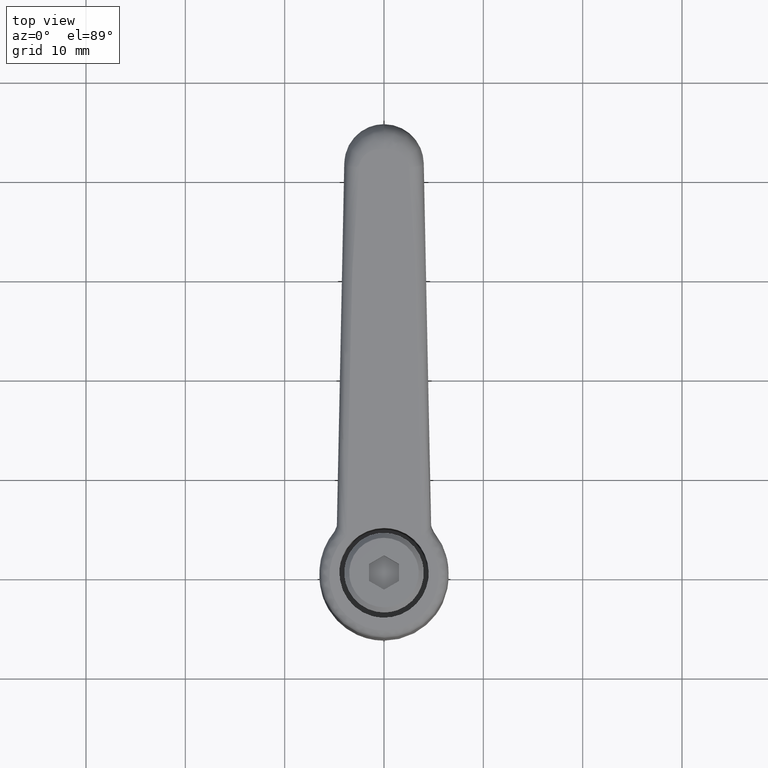
[diagram: clean part render]
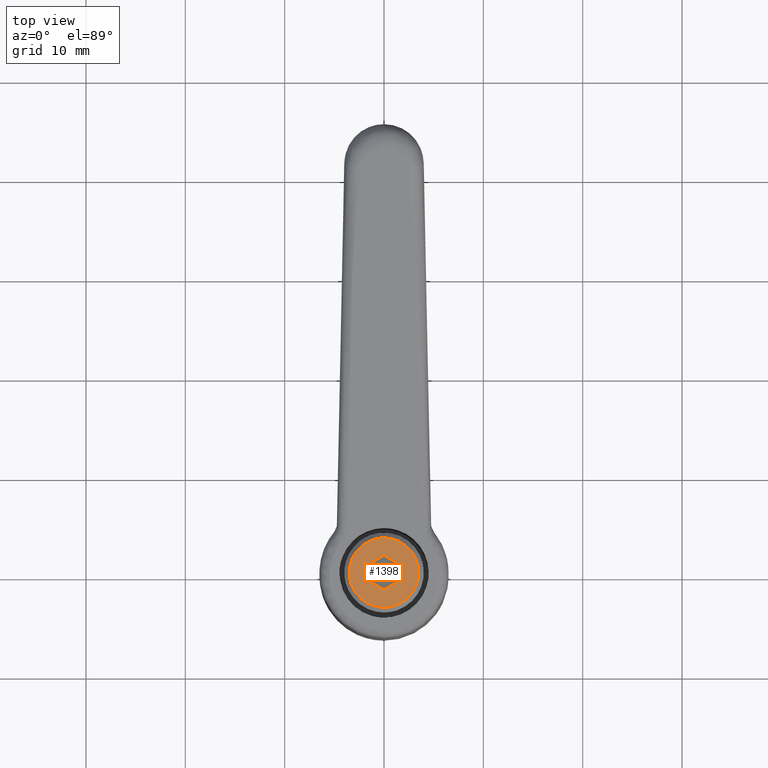
[diagram: same view with one face highlighted and labeled with its STEP entity id]
A machine part, top view. The second image highlights one B-rep face of the part: STEP entity #1398.
In plain terms, the highlighted face is a freeform B-spline surface patch.
Its self-contained STEP definition (entity closure, byte-faithful):
#1063=CARTESIAN_POINT('',(-0.413119821399317,3.475533342273494,24.499999999987359));
#1064=VERTEX_POINT('',#1063);
#1070=CARTESIAN_POINT('',(3.499999999999901,0.0,24.500000000000000));
#1071=VERTEX_POINT('',#1070);
#1072=CARTESIAN_POINT('',(-0.413119821399317,3.475533342273495,24.499999999987363));
#1073=CARTESIAN_POINT('',(-0.207284418881910,3.499999999999901,24.499999999999996));
#1074=CARTESIAN_POINT('',(0.0,3.499999999999901,24.500000000000000));
#1075=CARTESIAN_POINT('',(3.499999999999901,3.499999999999901,24.499999999999993));
#1076=CARTESIAN_POINT('',(3.499999999999901,0.0,24.500000000000000));
#1084=(BOUNDED_CURVE()B_SPLINE_CURVE(2,(#1072,#1073,#1074,#1075,#1076),.UNSPECIFIED.,.F.,.U.)B_SPLINE_CURVE_WITH_KNOTS((3,2,3),(0.229562473505998,0.250000000000000,0.500000000000000),.UNSPECIFIED.)CURVE()GEOMETRIC_REPRESENTATION_ITEM()RATIONAL_B_SPLINE_CURVE((0.956026754168980,0.976055948322347,1.0,0.707106781186547,1.0))REPRESENTATION_ITEM(''));
#1085=EDGE_CURVE('',#1064,#1071,#1084,.T.);
#1087=CARTESIAN_POINT('',(0.213669888571159,-3.493471794490406,24.499999999973902));
#1088=VERTEX_POINT('',#1087);
#1089=CARTESIAN_POINT('',(3.499999999999901,0.0,24.500000000000000));
#1090=CARTESIAN_POINT('',(3.499999999999900,-3.292471233796733,24.499999999999993));
#1091=CARTESIAN_POINT('',(0.213669888571159,-3.493471794490406,24.499999999973902));
#1099=(BOUNDED_CURVE()B_SPLINE_CURVE(2,(#1089,#1090,#1091),.UNSPECIFIED.,.F.,.U.)B_SPLINE_CURVE_WITH_KNOTS((3,3),(0.500000000000000,0.739332962222452),.UNSPECIFIED.)CURVE()GEOMETRIC_REPRESENTATION_ITEM()RATIONAL_B_SPLINE_CURVE((1.0,0.719603993306031,0.976072041631374))REPRESENTATION_ITEM(''));
#1100=EDGE_CURVE('',#1071,#1088,#1099,.T.);
#1133=CARTESIAN_POINT('',(-3.499999999999901,0.0,24.500000000000000));
#1134=VERTEX_POINT('',#1133);
#1135=CARTESIAN_POINT('',(0.213669888571159,-3.493471794490407,24.499999999973895));
#1136=CARTESIAN_POINT('',(0.106934671743184,-3.499999999999900,24.500000000000000));
#1137=CARTESIAN_POINT('',(0.0,-3.499999999999901,24.500000000000000));
#1138=CARTESIAN_POINT('',(-3.499999999999901,-3.499999999999901,24.499999999999993));
#1139=CARTESIAN_POINT('',(-3.499999999999901,0.0,24.500000000000000));
#1147=(BOUNDED_CURVE()B_SPLINE_CURVE(2,(#1135,#1136,#1137,#1138,#1139),.UNSPECIFIED.,.F.,.U.)B_SPLINE_CURVE_WITH_KNOTS((3,2,3),(0.739332962222452,0.750000000000000,1.0),.UNSPECIFIED.)CURVE()GEOMETRIC_REPRESENTATION_ITEM()RATIONAL_B_SPLINE_CURVE((0.976072041631374,0.987502787880517,1.0,0.707106781186547,1.0))REPRESENTATION_ITEM(''));
#1148=EDGE_CURVE('',#1088,#1134,#1147,.T.);
#1150=CARTESIAN_POINT('',(-3.499999999999901,0.0,24.500000000000000));
#1151=CARTESIAN_POINT('',(-3.499999999999901,3.108610840651028,24.499999999999993));
#1152=CARTESIAN_POINT('',(-0.413119821399317,3.475533342273495,24.499999999987359));
#1160=(BOUNDED_CURVE()B_SPLINE_CURVE(2,(#1150,#1151,#1152),.UNSPECIFIED.,.F.,.U.)B_SPLINE_CURVE_WITH_KNOTS((3,3),(0.0,0.229562473505999),.UNSPECIFIED.)CURVE()GEOMETRIC_REPRESENTATION_ITEM()RATIONAL_B_SPLINE_CURVE((1.0,0.731050832864201,0.956026754168980))REPRESENTATION_ITEM(''));
#1161=EDGE_CURVE('',#1134,#1064,#1160,.T.);
#1222=CARTESIAN_POINT('',(-1.732055999999900,0.0,24.500000000000000));
#1223=VERTEX_POINT('',#1222);
#1224=CARTESIAN_POINT('',(-0.866020000000000,1.500000000000000,24.500000000000000));
#1225=VERTEX_POINT('',#1224);
#1226=CARTESIAN_POINT('',(-1.732055999999900,0.0,24.500000000000000));
#1227=CARTESIAN_POINT('',(-0.866020000000000,1.500000000000000,24.500000000000000));
#1228=QUASI_UNIFORM_CURVE('',1,(#1226,#1227),.UNSPECIFIED.,.F.,.U.);
#1229=EDGE_CURVE('',#1223,#1225,#1228,.T.);
#1250=CARTESIAN_POINT('',(-0.866027999999900,-1.499999999999914,24.500000000000000));
#1251=VERTEX_POINT('',#1250);
#1252=CARTESIAN_POINT('',(-0.866027999999900,-1.499999999999914,24.500000000000000));
#1253=CARTESIAN_POINT('',(-1.732055999999900,0.0,24.500000000000000));
#1254=QUASI_UNIFORM_CURVE('',1,(#1252,#1253),.UNSPECIFIED.,.F.,.U.);
#1255=EDGE_CURVE('',#1251,#1223,#1254,.T.);
#1272=CARTESIAN_POINT('',(0.866028000000000,-1.499999999999914,24.500000000000000));
#1273=VERTEX_POINT('',#1272);
#1274=CARTESIAN_POINT('',(0.866028000000000,-1.499999999999914,24.500000000000000));
#1275=CARTESIAN_POINT('',(-0.866027999999900,-1.499999999999914,24.500000000000000));
#1276=QUASI_UNIFORM_CURVE('',1,(#1274,#1275),.UNSPECIFIED.,.F.,.U.);
#1277=EDGE_CURVE('',#1273,#1251,#1276,.T.);
#1294=CARTESIAN_POINT('',(1.732048000000000,0.0,24.500000000000000));
#1295=VERTEX_POINT('',#1294);
#1296=CARTESIAN_POINT('',(1.732048000000000,0.0,24.500000000000000));
#1297=CARTESIAN_POINT('',(0.866028000000000,-1.499999999999914,24.500000000000000));
#1298=QUASI_UNIFORM_CURVE('',1,(#1296,#1297),.UNSPECIFIED.,.F.,.U.);
#1299=EDGE_CURVE('',#1295,#1273,#1298,.T.);
#1316=CARTESIAN_POINT('',(0.866020000000000,1.500000000000000,24.500000000000000));
#1317=VERTEX_POINT('',#1316);
#1318=CARTESIAN_POINT('',(0.866020000000000,1.500000000000000,24.500000000000000));
#1319=CARTESIAN_POINT('',(1.732048000000000,0.0,24.500000000000000));
#1320=QUASI_UNIFORM_CURVE('',1,(#1318,#1319),.UNSPECIFIED.,.F.,.U.);
#1321=EDGE_CURVE('',#1317,#1295,#1320,.T.);
#1338=CARTESIAN_POINT('',(-0.866020000000000,1.500000000000000,24.500000000000000));
#1339=CARTESIAN_POINT('',(0.866020000000000,1.500000000000000,24.500000000000000));
#1340=QUASI_UNIFORM_CURVE('',1,(#1338,#1339),.UNSPECIFIED.,.F.,.U.);
#1341=EDGE_CURVE('',#1225,#1317,#1340,.T.);
#1379=CARTESIAN_POINT('',(-3.849649986432532,-3.849564799543457,24.500000000000000));
#1380=CARTESIAN_POINT('',(3.849650174187163,-3.849564799543457,24.500000000000000));
#1381=CARTESIAN_POINT('',(-3.849649986432532,3.849586328741148,24.500000000000000));
#1382=CARTESIAN_POINT('',(3.849650174187163,3.849586328741148,24.500000000000000));
#1383=B_SPLINE_SURFACE_WITH_KNOTS('',1,1,((#1379,#1381),(#1380,#1382)),.UNSPECIFIED.,.F.,.F.,.U.,(2,2),(2,2),(0.0,7.699300160619695),(0.0,7.699151128284605),.UNSPECIFIED.);
#1384=ORIENTED_EDGE('',*,*,#1148,.F.);
#1385=ORIENTED_EDGE('',*,*,#1100,.F.);
#1386=ORIENTED_EDGE('',*,*,#1085,.F.);
#1387=ORIENTED_EDGE('',*,*,#1161,.F.);
#1388=EDGE_LOOP('',(#1384,#1385,#1386,#1387));
#1389=FACE_OUTER_BOUND('',#1388,.T.);
#1390=ORIENTED_EDGE('',*,*,#1229,.T.);
#1391=ORIENTED_EDGE('',*,*,#1341,.T.);
#1392=ORIENTED_EDGE('',*,*,#1321,.T.);
#1393=ORIENTED_EDGE('',*,*,#1299,.T.);
#1394=ORIENTED_EDGE('',*,*,#1277,.T.);
#1395=ORIENTED_EDGE('',*,*,#1255,.T.);
#1396=EDGE_LOOP('',(#1390,#1391,#1392,#1393,#1394,#1395));
#1397=FACE_BOUND('',#1396,.T.);
#1398=ADVANCED_FACE('',(#1389,#1397),#1383,.T.);